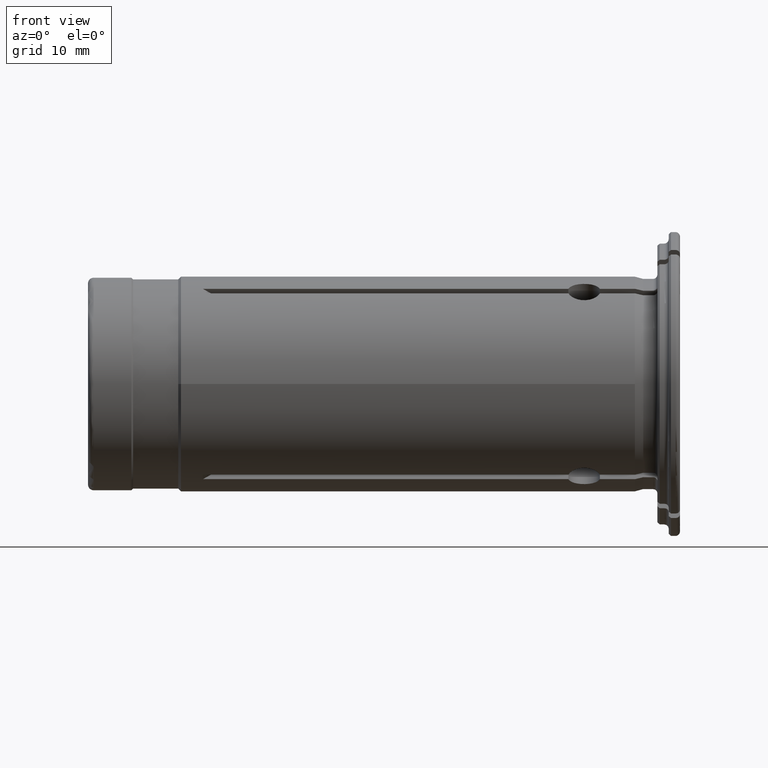
[diagram: clean part render]
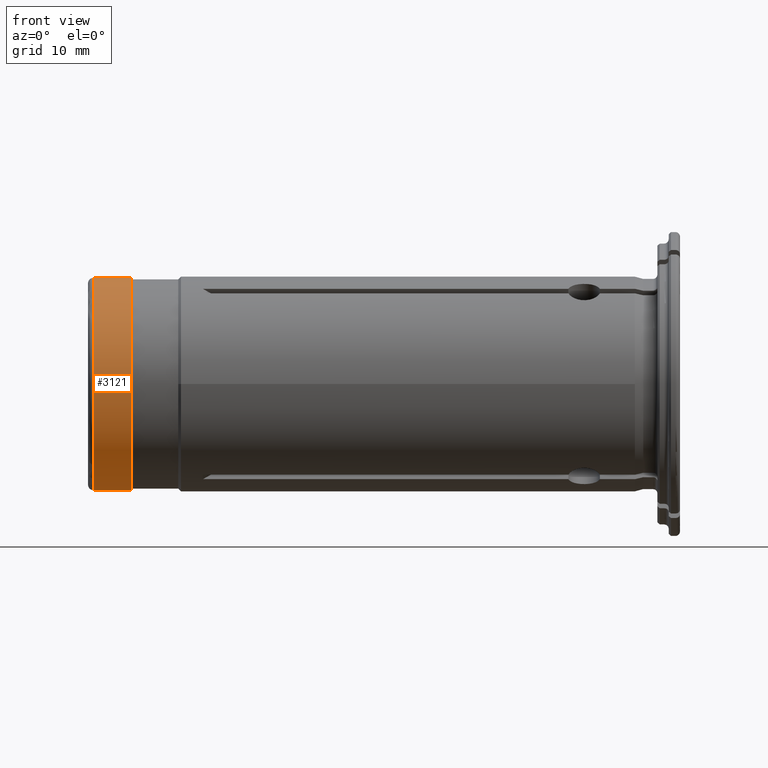
[diagram: same view with one face highlighted and labeled with its STEP entity id]
A machine part, front view. The second image highlights one B-rep face of the part: STEP entity #3121.
In plain terms, the highlighted cylindrical surface (partial cylindrical patch) has radius 9.425 mm, axis along (1, 0, 0).
Its self-contained STEP definition (entity closure, byte-faithful):
#1452=CARTESIAN_POINT('',(-5.E1,0.E0,0.E0));
#1453=DIRECTION('',(-1.E0,0.E0,0.E0));
#1454=DIRECTION('',(0.E0,0.E0,-1.E0));
#1455=AXIS2_PLACEMENT_3D('',#1452,#1453,#1454);
#1457=DIRECTION('',(1.E0,-1.069264023223E-9,-1.076185906443E-10));
#1458=VECTOR('',#1457,3.350000000361E0);
#1459=CARTESIAN_POINT('',(-5.E1,-1.231934393874E-12,9.425E0));
#1460=LINE('',#1459,#1458);
#1461=CARTESIAN_POINT('',(-4.665E1,0.E0,0.E0));
#1462=DIRECTION('',(1.E0,0.E0,0.E0));
#1463=DIRECTION('',(0.E0,0.E0,1.E0));
#1464=AXIS2_PLACEMENT_3D('',#1461,#1462,#1463);
#1466=DIRECTION('',(1.E0,1.069265056446E-9,1.076185906443E-10));
#1467=VECTOR('',#1466,3.350000000361E0);
#1468=CARTESIAN_POINT('',(-5.E1,1.227109879047E-12,-9.425E0));
#1469=LINE('',#1468,#1467);
#1879=CARTESIAN_POINT('',(-4.665E1,0.E0,9.425E0));
#1880=CARTESIAN_POINT('',(-4.665E1,0.E0,-9.425E0));
#1881=VERTEX_POINT('',#1879);
#1882=VERTEX_POINT('',#1880);
#1895=CARTESIAN_POINT('',(-5.E1,0.E0,9.425E0));
#1896=CARTESIAN_POINT('',(-5.E1,0.E0,-9.425E0));
#1897=VERTEX_POINT('',#1895);
#1898=VERTEX_POINT('',#1896);
#3107=CARTESIAN_POINT('',(0.E0,0.E0,0.E0));
#3108=DIRECTION('',(1.E0,0.E0,0.E0));
#3109=DIRECTION('',(0.E0,0.E0,1.E0));
#3110=AXIS2_PLACEMENT_3D('',#3107,#3108,#3109);
#3111=CYLINDRICAL_SURFACE('',#3110,9.425E0);
#3112=ORIENTED_EDGE('',*,*,#3101,.T.);
#3114=ORIENTED_EDGE('',*,*,#3113,.T.);
#3116=ORIENTED_EDGE('',*,*,#3115,.T.);
#3118=ORIENTED_EDGE('',*,*,#3117,.F.);
#3119=EDGE_LOOP('',(#3112,#3114,#3116,#3118));
#3120=FACE_OUTER_BOUND('',#3119,.F.);
#3121=ADVANCED_FACE('',(#3120),#3111,.T.);
#1456=CIRCLE('',#1455,9.425E0);
#1465=CIRCLE('',#1464,9.425E0);
#3101=EDGE_CURVE('',#1898,#1897,#1456,.T.);
#3113=EDGE_CURVE('',#1897,#1881,#1460,.T.);
#3115=EDGE_CURVE('',#1881,#1882,#1465,.T.);
#3117=EDGE_CURVE('',#1898,#1882,#1469,.T.);